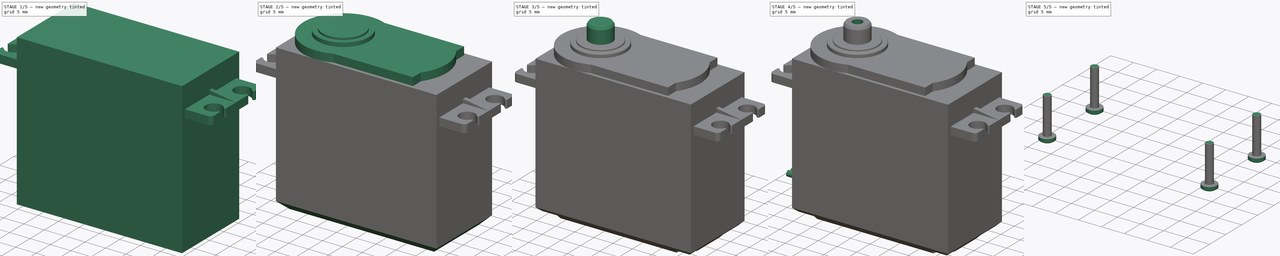
[diagram: build sequence overview — one tinted view per stage of 5, left to right]
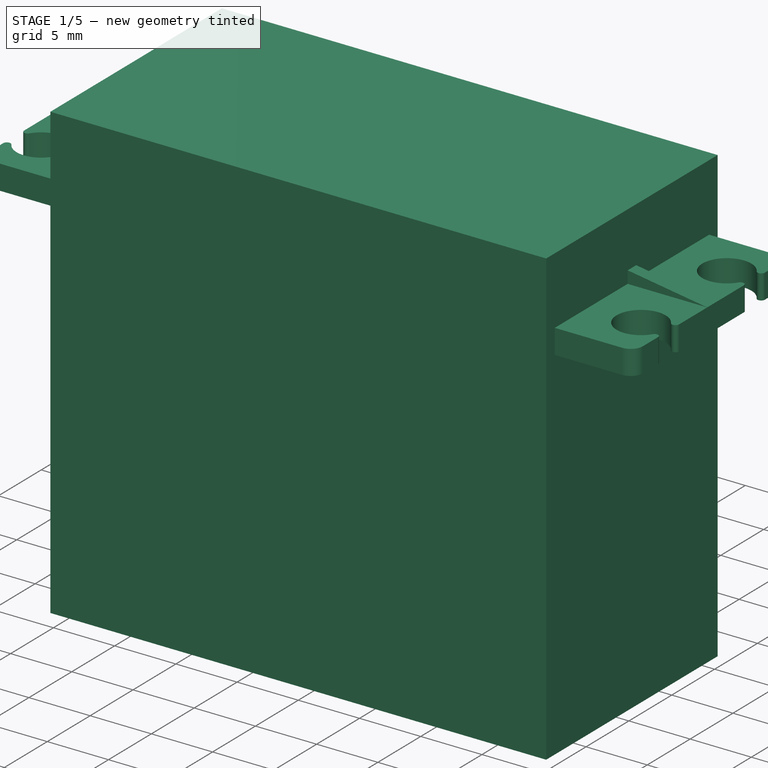
[diagram: stage 1 of 5 — iso view after this stage's code; geometry added in this stage tinted green]
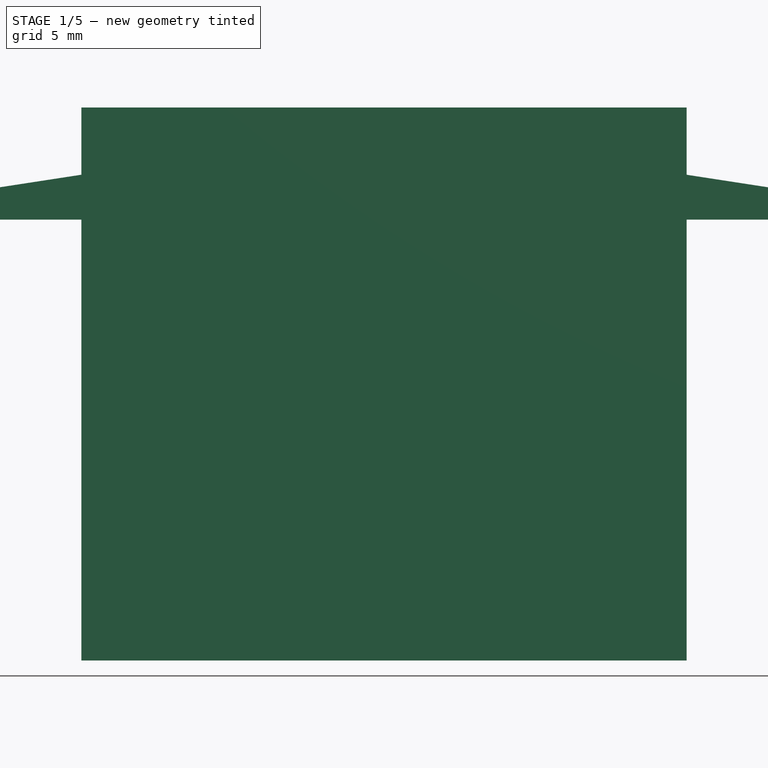
[diagram: stage 1 of 5 — front view after this stage's code; geometry added in this stage tinted green]
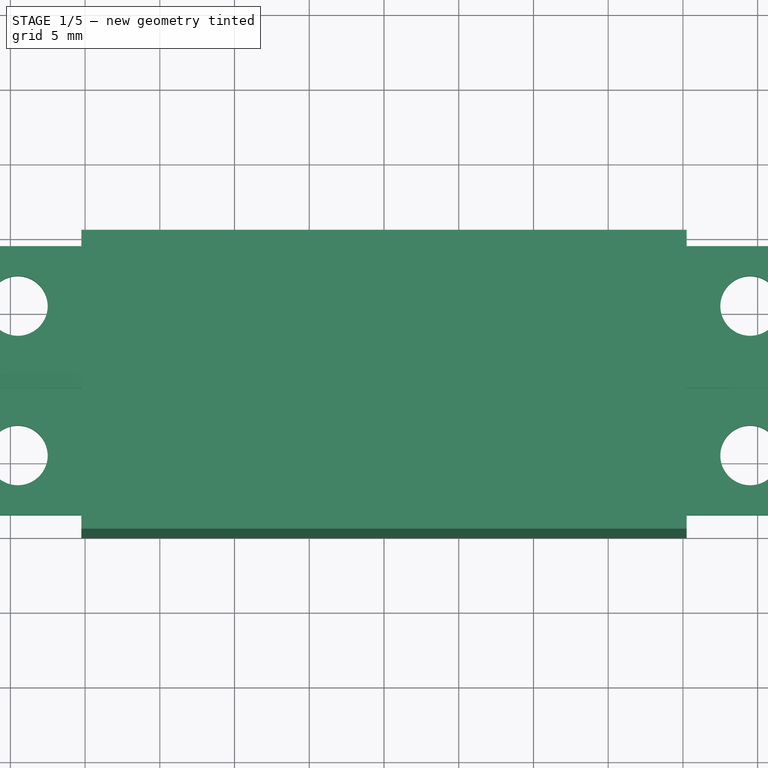
[diagram: stage 1 of 5 — top view after this stage's code; geometry added in this stage tinted green]
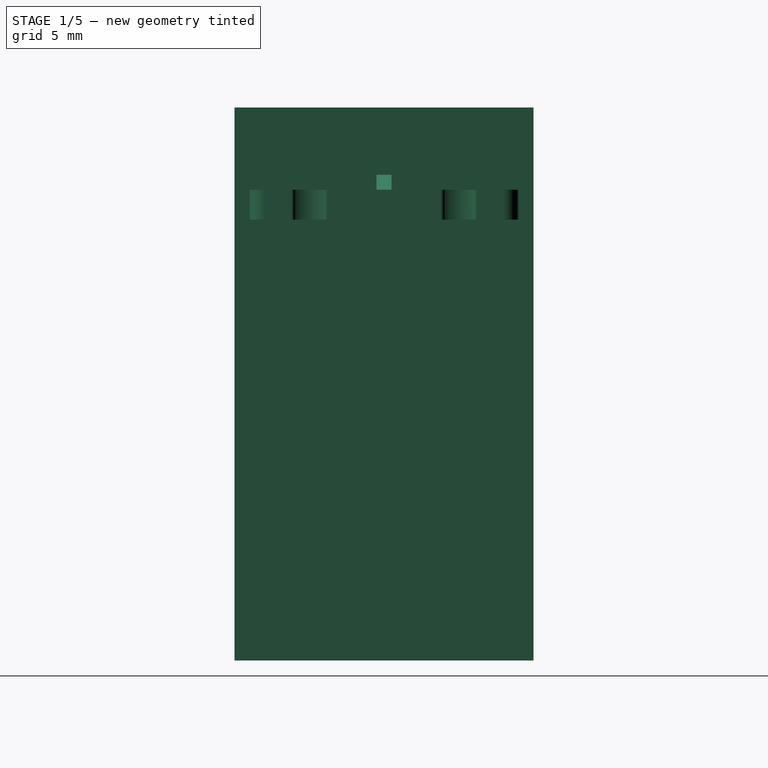
[diagram: stage 1 of 5 — right view after this stage's code; geometry added in this stage tinted green]
FCSTD DOCUMENT  (FreeCAD 0.19R24276 (Git))
Label: servo
License: All rights reserved
LicenseURL: http://en.wikipedia.org/wiki/All_rights_reserved
objects: Sketcher::SketchObject×13, PartDesign::Pad×10, Part::FeaturePython×4, PartDesign::Pocket×3, PartDesign::Chamfer×2, PartDesign::Plane×1, PartDesign::Mirrored×1, PartDesign::Fillet×1, PartDesign::Body×1, App::DocumentObjectGroup×1
note: 52 computed .brp shape members not serialized (recipe doc carries the construction recipe); baked Part::Feature solids carry a one-line shape summary decoded from their .brp

FEATURE [Sketcher::SketchObject] Sketch
  FullyConstrained = true
  MapMode = 5
  Support = -> [XY_Plane]
  sketch-geometry (4):
    g0: LineSegment StartX=-20.25 StartY=10 StartZ=0 EndX=20.25 EndY=10 EndZ=0
    g1: LineSegment StartX=20.25 StartY=10 StartZ=0 EndX=20.25 EndY=-10 EndZ=0
    g2: LineSegment StartX=20.25 StartY=-10 StartZ=0 EndX=-20.25 EndY=-10 EndZ=0
    g3: LineSegment StartX=-20.25 StartY=-10 StartZ=0 EndX=-20.25 EndY=10 EndZ=0
  constraints (11):
    c: Coincident(g0,g1)
    c: Coincident(g1,g2)
    c: Coincident(g2,g3)
    c: Coincident(g3,g0)
    c: Horizontal(g0)
    c: Horizontal(g2)
    c: Vertical(g1)
    c: Vertical(g3)
    c: Symmetric(g0,g2,g-1)
    c: DistanceX(g2,g2) = 40.5
    c: DistanceY(g1,g1) = 20
FEATURE [PartDesign::Pad] Pad
  Direction = (1,1,1)
  Length = 37
  Length2 = 100
  Profile = -> Sketch
  Type = 0
FEATURE [PartDesign::Plane] DatumPlane
  AttachmentOffset = pos=(0,0,-5.5) rot=(0,0,1;0rad)
  Length = 64.3923
  MapMode = 5
  Placement = pos=(0,0,31.5) rot=(0,0,1;0rad)
  ResizeMode = 0
  Support = -> [Pad]
  Width = 60.3923
FEATURE [Sketcher::SketchObject] Sketch001
  ExternalGeometry = -> [Pad]
  FullyConstrained = true
  MapMode = 5
  Placement = pos=(0,0,31.5) rot=(0,0,1;0rad)
  Support = -> [DatumPlane]
  sketch-geometry (14):
    g0: LineSegment StartX=20.25 StartY=9 StartZ=0 EndX=20.25 EndY=-9 EndZ=0
    g1: LineSegment StartX=20.25 StartY=-9 StartZ=0 EndX=25.75 EndY=-9 EndZ=0
    g2: LineSegment StartX=26.75 StartY=-8 StartZ=0 EndX=26.75 EndY=-6.21963 EndZ=0
    g3: LineSegment StartX=25.75 StartY=9 StartZ=0 EndX=20.25 EndY=9 EndZ=0
    g4: ArcOfCircle CenterX=25.75 CenterY=8 CenterZ=0 NormalX=0 NormalY=0 NormalZ=1 AngleXU=0 Radius=1 StartAngle=1.21603e-05 EndAngle=1.5708
    g5: ArcOfCircle CenterX=25.75 CenterY=-8 CenterZ=0 NormalX=0 NormalY=0 NormalZ=1 AngleXU=0 Radius=1 StartAngle=4.71239 EndAngle=6.28319
    g6: ArcOfCircle CenterX=24.5 CenterY=5 CenterZ=0 NormalX=0 NormalY=0 NormalZ=1 AngleXU=0 Radius=2 StartAngle=0.558924 EndAngle=5.72426
    g7: ArcOfCircle CenterX=24.5 CenterY=-5 CenterZ=0 NormalX=0 NormalY=0 NormalZ=1 AngleXU=0 Radius=2 StartAngle=0.558924 EndAngle=5.72426
    g8: ArcOfCircle CenterX=26.45 CenterY=6.21963 CenterZ=0 NormalX=0 NormalY=0 NormalZ=1 AngleXU=0 Radius=0.3 StartAngle=3.70052 EndAngle=6.28319
    g9: ArcOfCircle CenterX=26.45 CenterY=3.78037 CenterZ=0 NormalX=0 NormalY=0 NormalZ=1 AngleXU=0 Radius=0.3 StartAngle=6.28318 EndAngle=8.86585
    g10: ArcOfCircle CenterX=26.45 CenterY=-3.78037 CenterZ=0 NormalX=0 NormalY=0 NormalZ=1 AngleXU=0 Radius=0.3 StartAngle=3.70052 EndAngle=6.28318
    g11: ArcOfCircle CenterX=26.45 CenterY=-6.21963 CenterZ=0 NormalX=0 NormalY=0 NormalZ=1 AngleXU=0 Radius=0.3 StartAngle=1.54083e-05 EndAngle=2.58267
    g12: LineSegment StartX=26.75 StartY=6.21963 StartZ=0 EndX=26.75 EndY=8.00001 EndZ=0
    g13: LineSegment StartX=26.75 StartY=-3.78037 StartZ=0 EndX=26.75 EndY=3.78037 EndZ=0
  constraints (38):
    c: Coincident(g0,g1)
    c: Horizontal(g1)
    c: Vertical(g2)
    c: Coincident(g3,g0)
    c: Horizontal(g3)
    c: Coincident(g12,g4) = -1.5708
    c: Tangent(g3,g4) = -1.5708
    c: Tangent(g1,g5) = -1.5708
    c: Tangent(g2,g5) = -1.5708
    c: Equal(g4,g5)
    c: Radius(g4) = 1
    c: Symmetric(g0,g0,g-1)
    c: Vertical(g0,g-3)
    c: DistanceX(g0,g2) = 6.5
    c: DistanceY(g0,g0) = 18
    c: Symmetric(g6,g7,g-1)
    c: DistanceX(g-1,g6) = 24.5
    c: Diameter(g7) = 4
    c: Equal(g7,g6)
    c: DistanceY(g7,g6) = 10
    c: Equal(g11,g10)
    c: Equal(g10,g9)
    c: Equal(g9,g8)
    c: Vertical(g11,g10)
    c: Vertical(g10,g9)
    c: Vertical(g9,g8)
    c: Radius(g8) = 0.3
    c: Tangent(g6,g8) = 1.5708
    c: Tangent(g6,g9) = 1.5708
    c: Coincident(g13,g9)
    c: Tangent(g12,g8) = -1.5708
    c: Tangent(g2,g12)
    c: Tangent(g7,g10) = 1.5708
    c: Tangent(g7,g11) = 1.5708
    c: Coincident(g2,g11)
    c: Coincident(g13,g10)
    c: Tangent(g2,g13)
    c: Vertical(g4,g5)
FEATURE [PartDesign::Pad] Pad001
  BaseFeature = -> Pad
  Direction = (1,1,1)
  Length = 2
  Length2 = 100
  Profile = -> Sketch001
  Reversed = true
  Type = 0
FEATURE [Sketcher::SketchObject] Sketch002
  ExternalGeometry = -> [Pad001]
  FullyConstrained = true
  Placement = pos=(0,0,0) rot=(1,0,0;1.5708rad)
  sketch-geometry (3):
    g0: LineSegment StartX=20.25 StartY=32.5 StartZ=0 EndX=20.25 EndY=31.5 EndZ=0
    g1: LineSegment StartX=20.25 StartY=31.5 StartZ=0 EndX=26.75 EndY=31.5 EndZ=0
    g2: LineSegment StartX=26.75 StartY=31.5 StartZ=0 EndX=20.25 EndY=32.5 EndZ=0
  constraints (7):
    c: Coincident(g0,g1)
    c: Coincident(g1,g2)
    c: Coincident(g2,g0)
    c: Coincident(g1,g-3)
    c: Coincident(g0,g-4)
    c: Vertical(g0)
    c: DistanceY(g0,g0) = 1
FEATURE [PartDesign::Pad] Pad002
  BaseFeature = -> Pad001
  Direction = (1,1,1)
  Length = 1
  Length2 = 100
  Midplane = true
  Profile = -> Sketch002
  Type = 0
FEATURE [PartDesign::Mirrored] Mirrored
  BaseFeature = -> Pad002
  MirrorPlane = -> Sketch001 [V_Axis]
  Originals = -> [Pad001,Pad002]
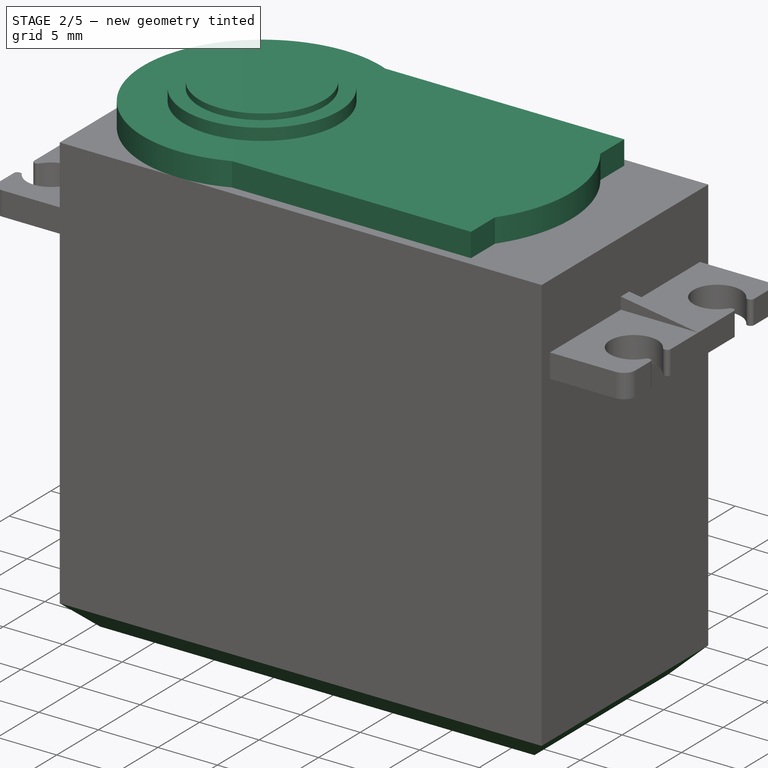
[diagram: stage 2 of 5 — iso view after this stage's code; geometry added in this stage tinted green]
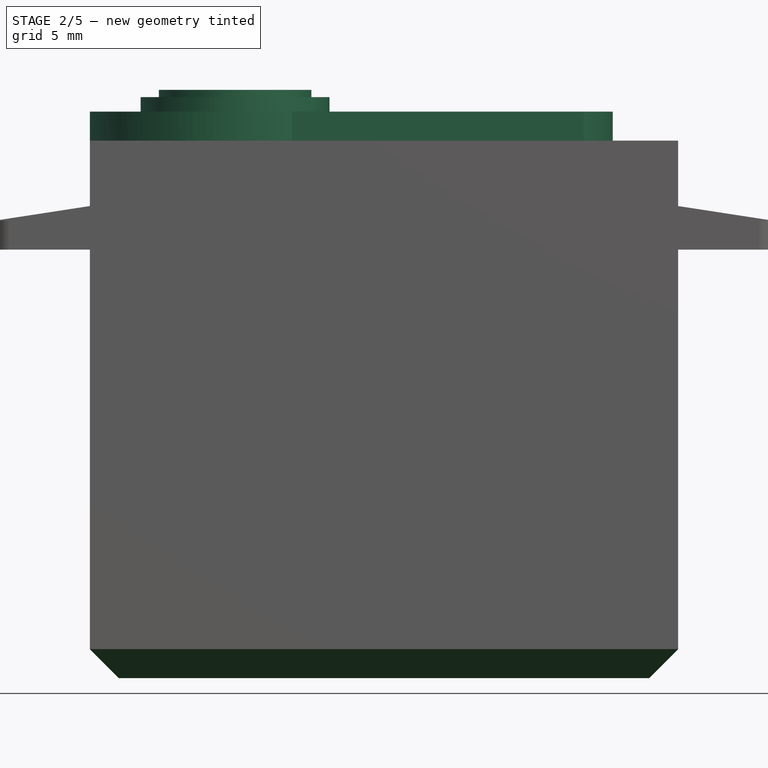
[diagram: stage 2 of 5 — front view after this stage's code; geometry added in this stage tinted green]
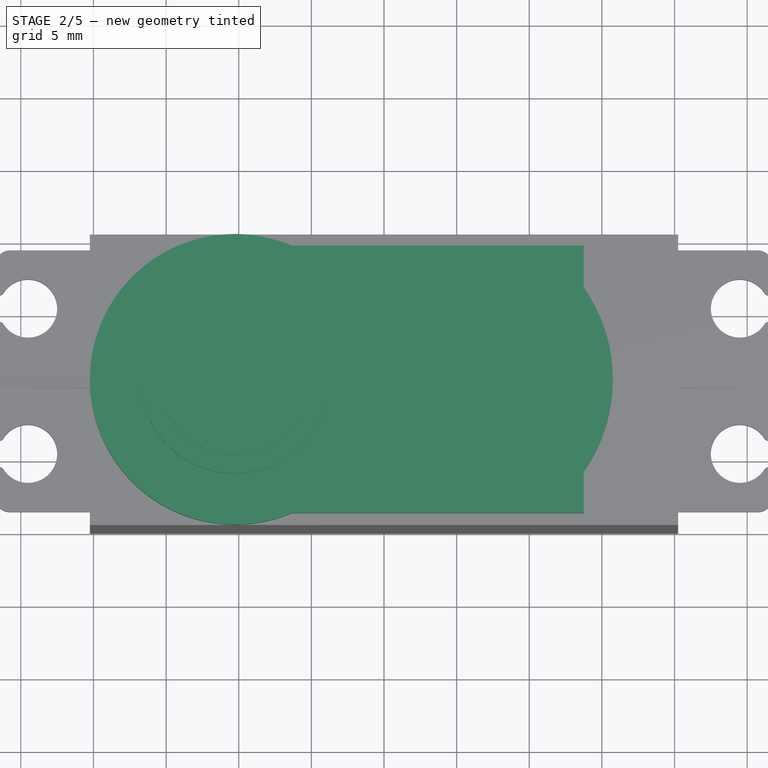
[diagram: stage 2 of 5 — top view after this stage's code; geometry added in this stage tinted green]
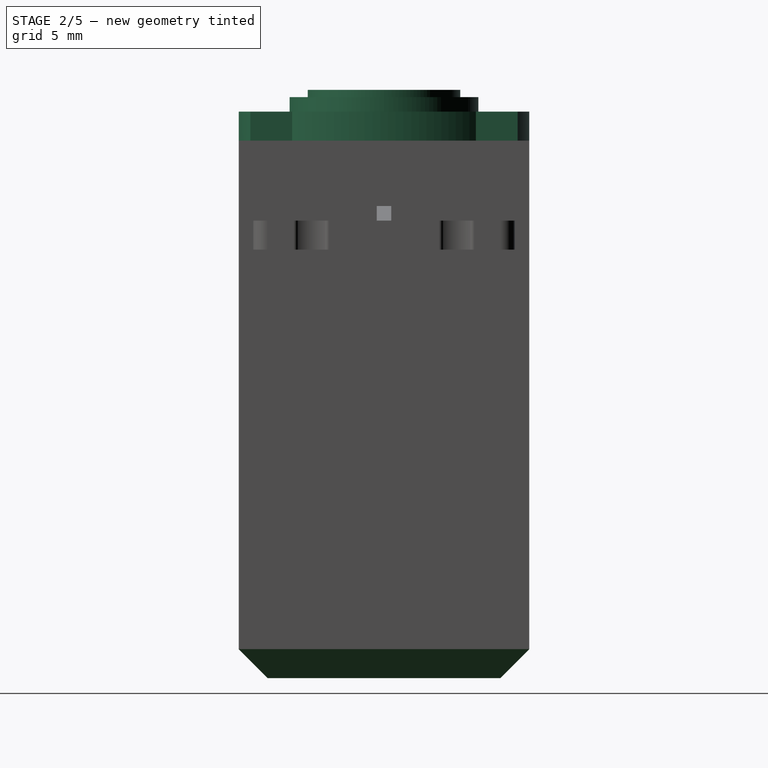
[diagram: stage 2 of 5 — right view after this stage's code; geometry added in this stage tinted green]
FEATURE [PartDesign::Chamfer] Chamfer
  Angle = 30
  Base = -> Mirrored [Edge27,Edge6,Edge3,Edge16]
  BaseFeature = -> Mirrored
  ChamferType = 0
  FlipDirection = false
  Size = 2
  Size2 = 1
  SupportTransform = false
FEATURE [Sketcher::SketchObject] Sketch003
  ExternalGeometry = -> [Chamfer]
  FullyConstrained = true
  MapMode = 5
  Placement = pos=(0,0,37) rot=(0,0,1;0rad)
  Support = -> [Chamfer]
  sketch-geometry (7):
    g0: ArcOfCircle CenterX=-10.25 CenterY=1.2e-15 CenterZ=0 NormalX=0 NormalY=0 NormalZ=1 AngleXU=0 Radius=10 StartAngle=1.16808 EndAngle=5.1151
    g1: LineSegment StartX=-6.33082 StartY=9.2 StartZ=0 EndX=13.75 EndY=9.2 EndZ=0
    g2: LineSegment StartX=13.75 StartY=9.2 StartZ=0 EndX=13.75 EndY=6.32456 EndZ=0
    g3: LineSegment StartX=13.75 StartY=-9.2 StartZ=0 EndX=-6.33082 EndY=-9.2 EndZ=0
    g4: ArcOfCircle CenterX=4.75 CenterY=0 CenterZ=0 NormalX=0 NormalY=0 NormalZ=1 AngleXU=0 Radius=11 StartAngle=5.67063 EndAngle=6.89574
    g5: GeomPoint X=15.75 Y=0 Z=0
    g6: LineSegment StartX=13.75 StartY=-6.32456 StartZ=0 EndX=13.75 EndY=-9.2 EndZ=0
  constraints (20):
    c: Coincident(g1,g2)
    c: Coincident(g6,g3)
    c: Horizontal(g1)
    c: Horizontal(g3)
    c: Vertical(g2)
    c: PointOnObject(g4,g-1)
    c: Tangent(g0,g-5)
    c: Tangent(g0,g-6)
    c: Symmetric(g1,g3,g-1)
    c: DistanceY(g1,g-5) = 0.8
    c: DistanceX(g-6,g1) = 34
    c: PointOnObject(g5,g4)
    c: PointOnObject(g5,g-1)
    c: DistanceX(g4,g5) = 2
    c: Coincident(g0,g1)
    c: Coincident(g0,g3)
    c: Coincident(g2,g4)
    c: Coincident(g6,g4)
    c: Tangent(g2,g6)
    c: Radius(g4) = 11
FEATURE [PartDesign::Pad] Pad003
  BaseFeature = -> Chamfer
  Direction = (1,1,1)
  Length = 2
  Length2 = 100
  Profile = -> Sketch003
  Type = 0
FEATURE [Sketcher::SketchObject] Sketch004
  FullyConstrained = false
  MapMode = 5
  Placement = pos=(0,0,39) rot=(0,0,1;0rad)
  Support = -> [Pad003]
  sketch-geometry (1):
    g0: Circle CenterX=-10.25 CenterY=0 CenterZ=0 NormalX=0 NormalY=0 NormalZ=1 AngleXU=0 Radius=6.5
  constraints (1):
    c: Diameter(g0) = 13
FEATURE [PartDesign::Pad] Pad004
  BaseFeature = -> Pad003
  Direction = (1,1,1)
  Length = 1
  Length2 = 100
  Profile = -> Sketch004
  Type = 0
FEATURE [Sketcher::SketchObject] Sketch005
  FullyConstrained = false
  MapMode = 5
  Placement = pos=(0,0,40) rot=(0,0,1;0rad)
  Support = -> [Pad004]
  sketch-geometry (1):
    g0: Circle CenterX=-10.25 CenterY=0 CenterZ=0 NormalX=0 NormalY=0 NormalZ=1 AngleXU=0 Radius=5.25
  constraints (1):
    c: Diameter(g0) = 10.5
FEATURE [PartDesign::Pad] Pad005
  BaseFeature = -> Pad004
  Direction = (1,1,1)
  Length = 0.5
  Length2 = 100
  Profile = -> Sketch005
  Type = 0
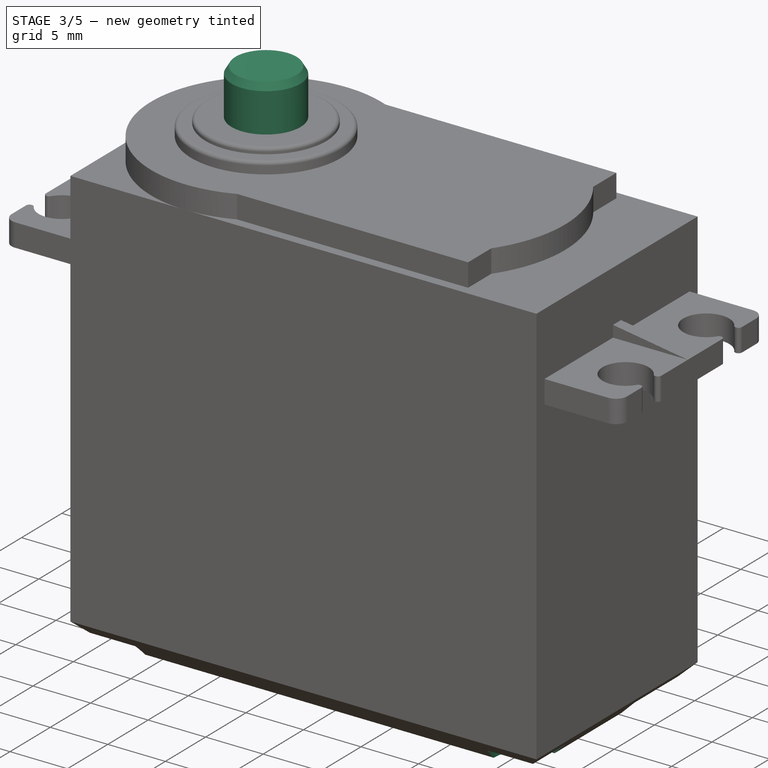
[diagram: stage 3 of 5 — iso view after this stage's code; geometry added in this stage tinted green]
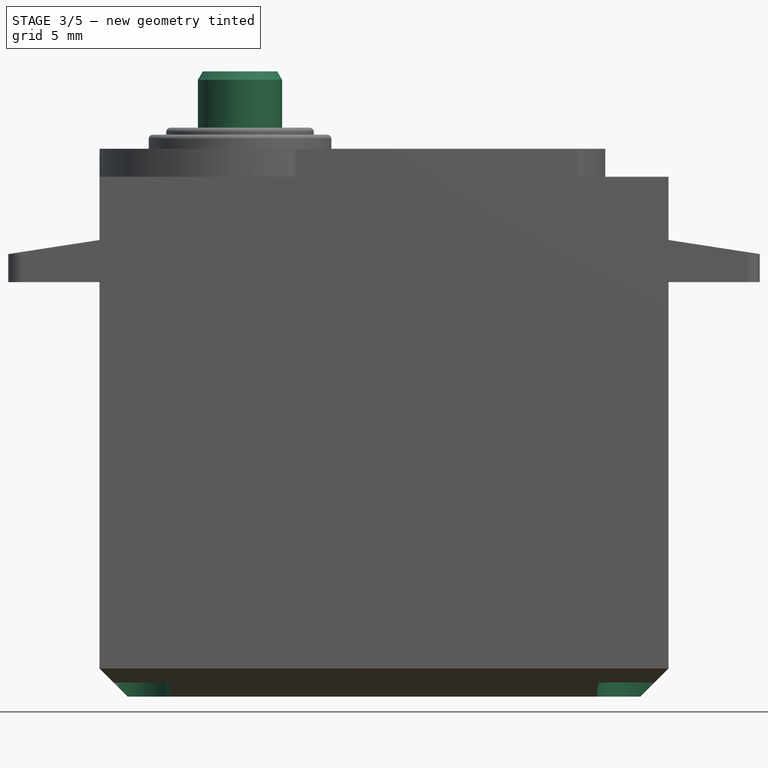
[diagram: stage 3 of 5 — front view after this stage's code; geometry added in this stage tinted green]
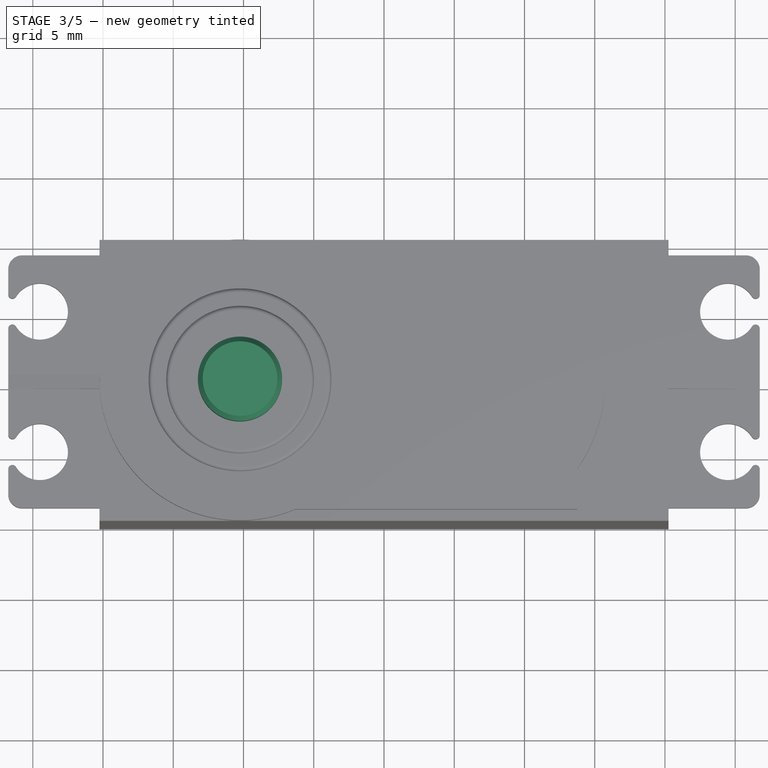
[diagram: stage 3 of 5 — top view after this stage's code; geometry added in this stage tinted green]
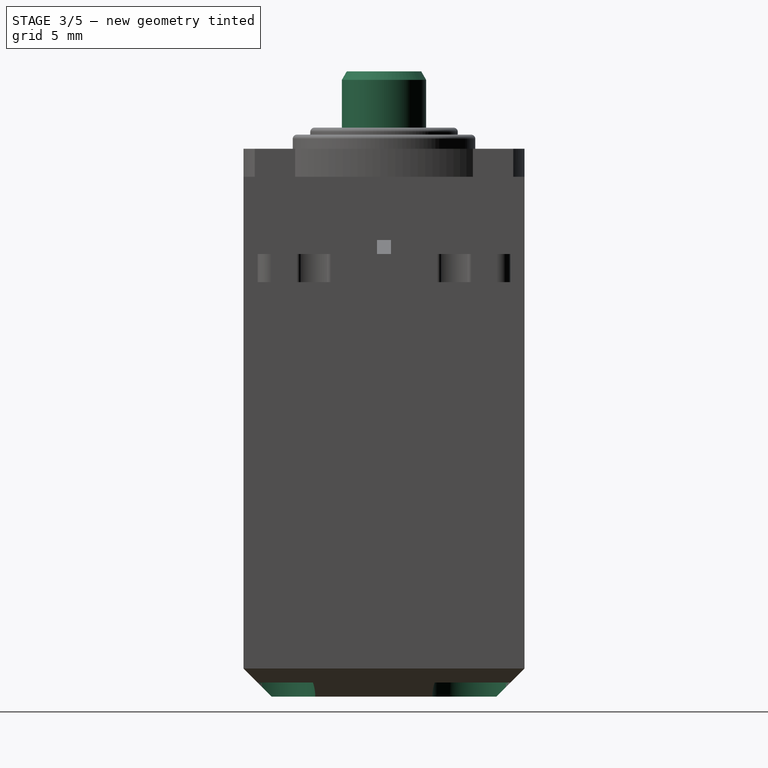
[diagram: stage 3 of 5 — right view after this stage's code; geometry added in this stage tinted green]
FEATURE [Sketcher::SketchObject] Sketch006
  FullyConstrained = false
  MapMode = 5
  Placement = pos=(0,0,40.5) rot=(0,0,1;0rad)
  Support = -> [Pad005]
  sketch-geometry (1):
    g0: Circle CenterX=-10.25 CenterY=0 CenterZ=0 NormalX=0 NormalY=0 NormalZ=1 AngleXU=0 Radius=3
  constraints (1):
    c: Diameter(g0) = 6
FEATURE [PartDesign::Pad] Pad006
  BaseFeature = -> Pad005
  Direction = (1,1,1)
  Length = 4
  Length2 = 100
  Profile = -> Sketch006
  Type = 0
FEATURE [PartDesign::Chamfer] Chamfer001
  Angle = 30
  Base = -> Pad006 [Edge157]
  BaseFeature = -> Pad006
  ChamferType = 2
  FlipDirection = false
  Size = 0.6
  Size2 = 1
  SupportTransform = false
FEATURE [Sketcher::SketchObject] Sketch007
  ExternalGeometry = -> [Chamfer001]
  FullyConstrained = false
  MapMode = 5
  Placement = pos=(0,0,0) rot=(1,0,0;3.14159rad)
  sketch-geometry (4):
    g0: Circle CenterX=18.25 CenterY=8 CenterZ=0 NormalX=0 NormalY=0 NormalZ=1 AngleXU=0 Radius=3.10824
    g1: Circle CenterX=18.25 CenterY=-6.54874 CenterZ=0 NormalX=0 NormalY=0 NormalZ=1 AngleXU=0 Radius=3.10824
    g2: Circle CenterX=-18.25 CenterY=-8 CenterZ=0 NormalX=0 NormalY=0 NormalZ=1 AngleXU=0 Radius=3.10824
    g3: Circle CenterX=-18.25 CenterY=8 CenterZ=0 NormalX=0 NormalY=0 NormalZ=1 AngleXU=0 Radius=3.10824
  constraints (7):
    c: Symmetric(g3,g0,g-2)
    c: Symmetric(g2,g3,g-1)
    c: Vertical(g1,g0)
    c: Equal(g3,g2)
    c: Equal(g3,g1)
    c: Equal(g3,g0)
    c: Coincident(g3,g-5)
FEATURE [PartDesign::Pocket] Pocket
  BaseFeature = -> Chamfer001
  Length = 1
  Length2 = 100
  Profile = -> Sketch007
  Type = 0
FEATURE [Sketcher::SketchObject] Sketch008
  ExternalGeometry = -> [Pocket]
  FullyConstrained = false
  MapMode = 5
  Placement = pos=(0,0,1) rot=(1,0,0;3.14159rad)
  Support = -> [Pocket]
  sketch-geometry (4):
    g0: Circle CenterX=-17.6357 CenterY=7.34743 CenterZ=0 NormalX=0 NormalY=0 NormalZ=1 AngleXU=0 Radius=0.75
    g1: Circle CenterX=-17.6357 CenterY=-7.34743 CenterZ=0 NormalX=0 NormalY=0 NormalZ=1 AngleXU=0 Radius=0.75
    g2: Circle CenterX=17.6357 CenterY=-7.34743 CenterZ=0 NormalX=0 NormalY=0 NormalZ=1 AngleXU=0 Radius=0.75
    g3: Circle CenterX=17.6357 CenterY=7.34743 CenterZ=0 NormalX=0 NormalY=0 NormalZ=1 AngleXU=0 Radius=0.75
  constraints (7):
    c: Symmetric(g3,g0,g-2)
    c: Symmetric(g1,g0,g-1)
    c: Symmetric(g3,g2,g-1)
    c: Diameter(g3) = 1.5
    c: Equal(g3,g0)
    c: Equal(g3,g1)
    c: Equal(g3,g2)
FEATURE [PartDesign::Pocket] Pocket001
  BaseFeature = -> Pocket
  Length = 10
  Length2 = 100
  Profile = -> Sketch008
  Type = 0
FEATURE [Sketcher::SketchObject] Sketch009
  ExternalGeometry = -> [Pocket001]
  FullyConstrained = true
  MapMode = 5
  Placement = pos=(0,0,44.5) rot=(0,0,1;0rad)
  Support = -> [Pocket001]
  sketch-geometry (1):
    g0: Circle CenterX=-10.25 CenterY=0 CenterZ=0 NormalX=0 NormalY=0 NormalZ=1 AngleXU=0 Radius=1.25
  constraints (2):
    c: Coincident(g0,g-3)
    c: Diameter(g0) = 2.5
FEATURE [PartDesign::Fillet] Fillet
  Base = -> Pocket001 [Edge9,Edge6]
  BaseFeature = -> Pocket001
  Radius = 0.3
  SupportTransform = false
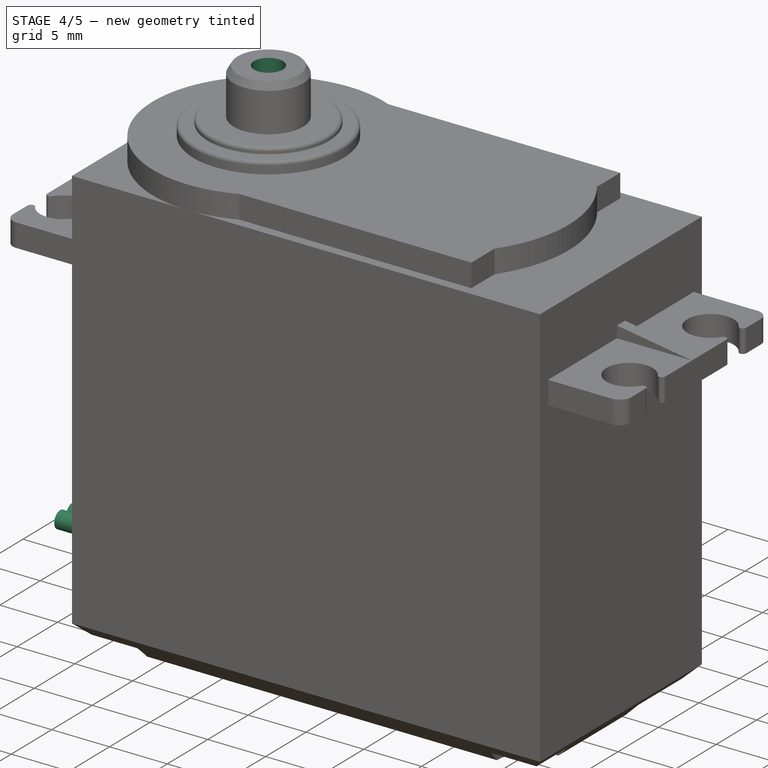
[diagram: stage 4 of 5 — iso view after this stage's code; geometry added in this stage tinted green]
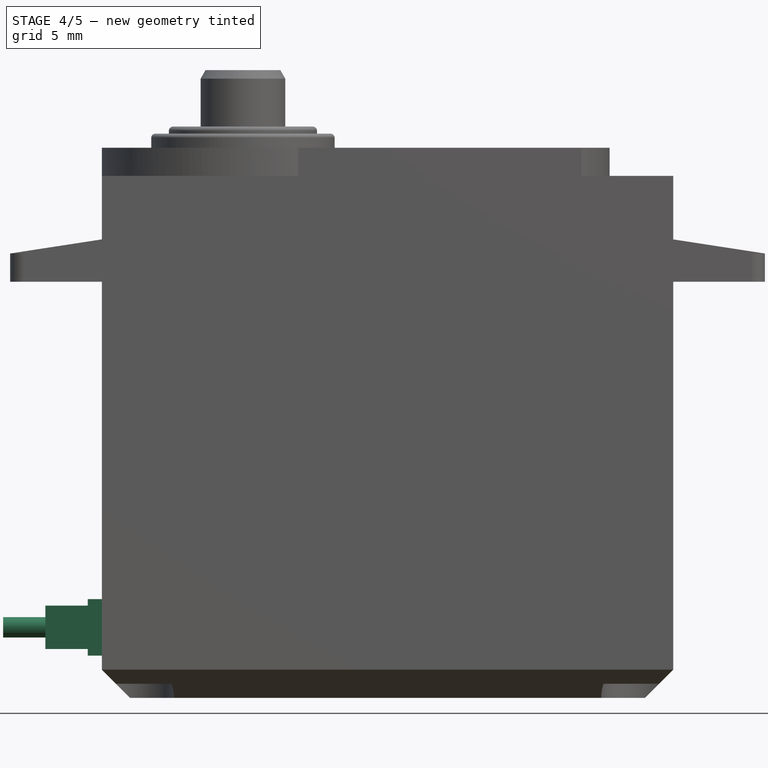
[diagram: stage 4 of 5 — front view after this stage's code; geometry added in this stage tinted green]
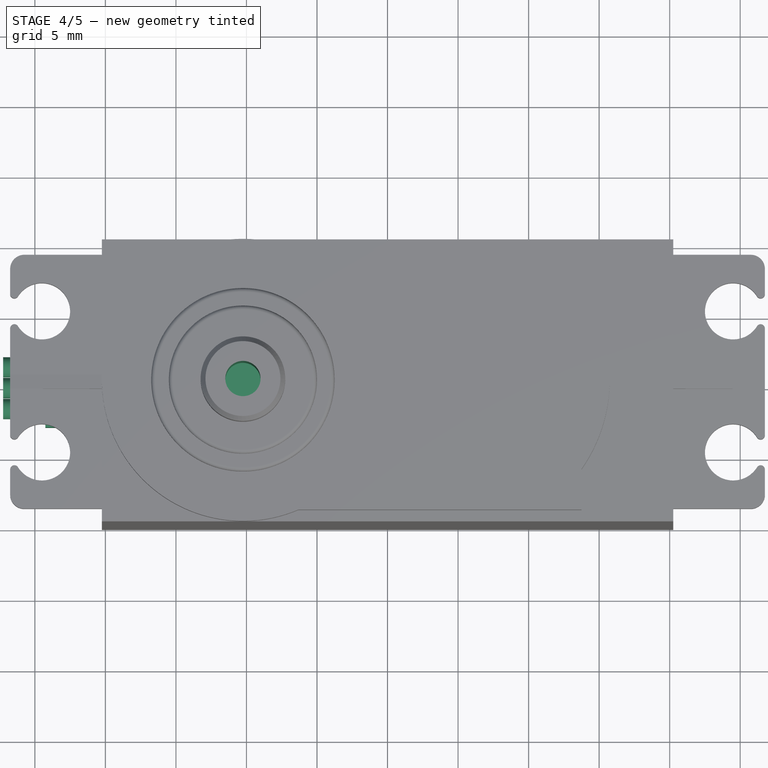
[diagram: stage 4 of 5 — top view after this stage's code; geometry added in this stage tinted green]
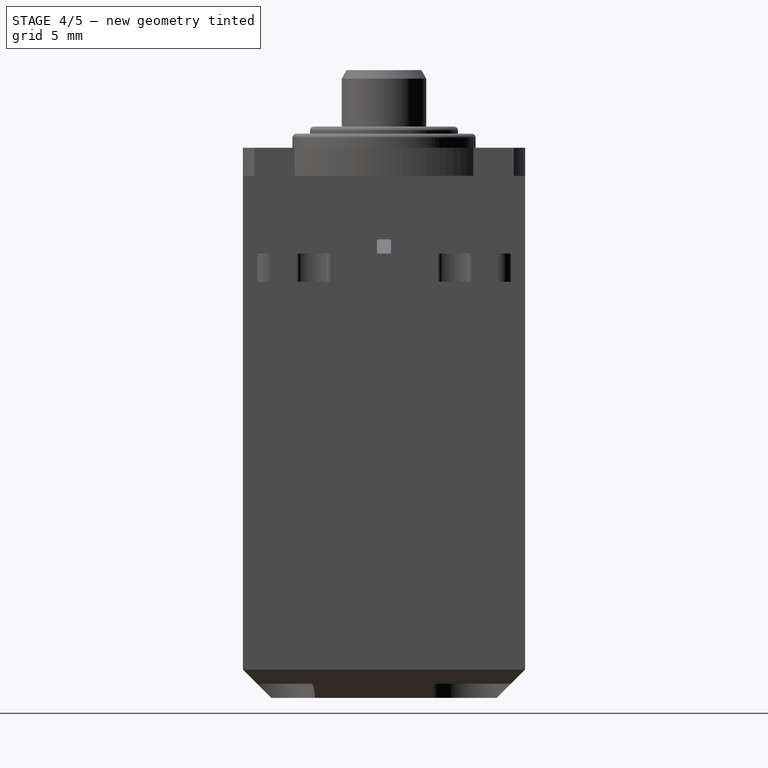
[diagram: stage 4 of 5 — right view after this stage's code; geometry added in this stage tinted green]
FEATURE [PartDesign::Pocket] Pocket002
  BaseFeature = -> Fillet
  Length = 8
  Length2 = 100
  Profile = -> Sketch009
  Type = 0
FEATURE [Sketcher::SketchObject] Sketch010
  FullyConstrained = true
  MapMode = 5
  Placement = pos=(-20.25,0,0) rot=(0.57735,-0.57735,-0.57735;2.0944rad)
  Support = -> [Pocket002]
  sketch-geometry (8):
    g0: LineSegment StartX=-3.25 StartY=7 StartZ=0 EndX=3.25 EndY=7 EndZ=0
    g1: LineSegment StartX=3.25 StartY=7 StartZ=0 EndX=3.25 EndY=3 EndZ=0
    g2: LineSegment StartX=3.25 StartY=3 StartZ=0 EndX=-3.25 EndY=3 EndZ=0
    g3: LineSegment StartX=-3.25 StartY=3 StartZ=0 EndX=-3.25 EndY=7 EndZ=0
    g4: LineSegment StartX=-2.25 StartY=6 StartZ=0 EndX=2.25 EndY=6 EndZ=0
    g5: LineSegment StartX=2.25 StartY=6 StartZ=0 EndX=2.25 EndY=4 EndZ=0
    g6: LineSegment StartX=2.25 StartY=4 StartZ=0 EndX=-2.25 EndY=4 EndZ=0
    g7: LineSegment StartX=-2.25 StartY=4 StartZ=0 EndX=-2.25 EndY=6 EndZ=0
  constraints (22):
    c: Coincident(g0,g1)
    c: Coincident(g1,g2)
    c: Coincident(g2,g3)
    c: Coincident(g3,g0)
    c: Horizontal(g2)
    c: Vertical(g1)
    c: Vertical(g3)
    c: Coincident(g4,g5)
    c: Coincident(g5,g6)
    c: Coincident(g6,g7)
    c: Coincident(g7,g4)
    c: Horizontal(g6)
    c: Vertical(g5)
    c: Vertical(g7)
    c: Symmetric(g4,g4,g-2)
    c: Symmetric(g0,g0,g-2)
    c: DistanceY(g-1,g2) = 3
    c: DistanceY(g3,g3) = 4
    c: DistanceY(g4,g0) = 1
    c: DistanceY(g2,g6) = 1
    c: DistanceX(g4,g0) = 1
    c: DistanceX(g0,g0) = 6.5
FEATURE [PartDesign::Pad] Pad007
  BaseFeature = -> Pocket002
  Direction = (1,1,1)
  Length = 1
  Length2 = 100
  Profile = -> Sketch010
  Type = 0
FEATURE [Sketcher::SketchObject] Sketch011
  ExternalGeometry = -> [Pad007]
  FullyConstrained = false
  MapMode = 5
  Placement = pos=(-21.25,0,0) rot=(0.57735,-0.57735,-0.57735;2.0944rad)
  Support = -> [Pad007]
  sketch-geometry (10):
    g0: LineSegment StartX=-2.78897 StartY=6.53897 StartZ=0 EndX=2.78897 EndY=6.53897 EndZ=0
    g1: LineSegment StartX=2.78897 StartY=6.53897 StartZ=0 EndX=2.78897 EndY=3.46103 EndZ=0
    g2: LineSegment StartX=2.78897 StartY=3.46103 StartZ=0 EndX=-2.78897 EndY=3.46103 EndZ=0
    g3: LineSegment StartX=-2.78897 StartY=3.46103 StartZ=0 EndX=-2.78897 EndY=6.53897 EndZ=0
    g4: LineSegment StartX=-2.25 StartY=4 StartZ=0 EndX=2.25 EndY=4 EndZ=0
    g5: LineSegment StartX=2.25 StartY=4 StartZ=0 EndX=2.25 EndY=6 EndZ=0
    g6: LineSegment StartX=2.25 StartY=6 StartZ=0 EndX=-2.25 EndY=6 EndZ=0
    g7: LineSegment StartX=-2.25 StartY=6 StartZ=0 EndX=-2.25 EndY=4 EndZ=0
    g8: LineSegment StartX=-3.25 StartY=3 StartZ=0 EndX=-2.25 EndY=4 EndZ=0
    g9: LineSegment StartX=2.25 StartY=6 StartZ=0 EndX=3.25 EndY=7 EndZ=0
  constraints (24):
    c: Coincident(g0,g1)
    c: Coincident(g1,g2)
    c: Coincident(g2,g3)
    c: Coincident(g3,g0)
    c: Horizontal(g2)
    c: Vertical(g1)
    c: Vertical(g3)
    c: Coincident(g4,g5)
    c: Coincident(g5,g6)
    c: Coincident(g6,g7)
    c: Coincident(g7,g4)
    c: Horizontal(g4)
    c: Horizontal(g6)
    c: Vertical(g5)
    c: Vertical(g7)
    c: Coincident(g4,g-5)
    c: Coincident(g5,g-4)
    c: Coincident(g8,g-6)
    c: Coincident(g8,g4)
    c: PointOnObject(g2,g8)
    c: Coincident(g9,g5)
    c: Coincident(g9,g-3)
    c: PointOnObject(g0,g9)
    c: Symmetric(g0,g0,g-2)
FEATURE [PartDesign::Pad] Pad008
  BaseFeature = -> Pad007
  Direction = (1,1,1)
  Length = 3
  Length2 = 100
  Profile = -> Sketch011
  Type = 0
FEATURE [Sketcher::SketchObject] Sketch012
  ExternalGeometry = -> [Pad008]
  FullyConstrained = false
  MapMode = 5
  Placement = pos=(-20.25,0,0) rot=(0.57735,-0.57735,-0.57735;2.0944rad)
  Support = -> [Pad008]
  sketch-geometry (5):
    g0: Circle CenterX=-1.47307 CenterY=5 CenterZ=0 NormalX=0 NormalY=0 NormalZ=1 AngleXU=0 Radius=0.722534
    g1: Circle CenterX=0 CenterY=5 CenterZ=0 NormalX=0 NormalY=0 NormalZ=1 AngleXU=0 Radius=0.722534
    g2: Circle CenterX=1.47307 CenterY=5 CenterZ=0 NormalX=0 NormalY=0 NormalZ=1 AngleXU=0 Radius=0.722534
    g3: LineSegment StartX=0 StartY=5 StartZ=0 EndX=0 EndY=6 EndZ=0
    g4: LineSegment StartX=0 StartY=5 StartZ=0 EndX=0 EndY=4 EndZ=0
  constraints (12):
    c: PointOnObject(g1,g-2)
    c: Horizontal(g0,g1)
    c: Symmetric(g0,g2,g-2)
    c: Equal(g0,g1)
    c: Equal(g1,g2)
    c: Coincident(g3,g1)
    c: PointOnObject(g3,g-2)
    c: Coincident(g4,g1)
    c: PointOnObject(g4,g-2)
    c: Horizontal(g4,g-4)
    c: Horizontal(g3,g-3)
    c: Equal(g3,g4)
FEATURE [PartDesign::Pad] Pad009
  BaseFeature = -> Pad008
  Direction = (1,1,1)
  Length = 7
  Length2 = 100
  Profile = -> Sketch012
  Type = 0
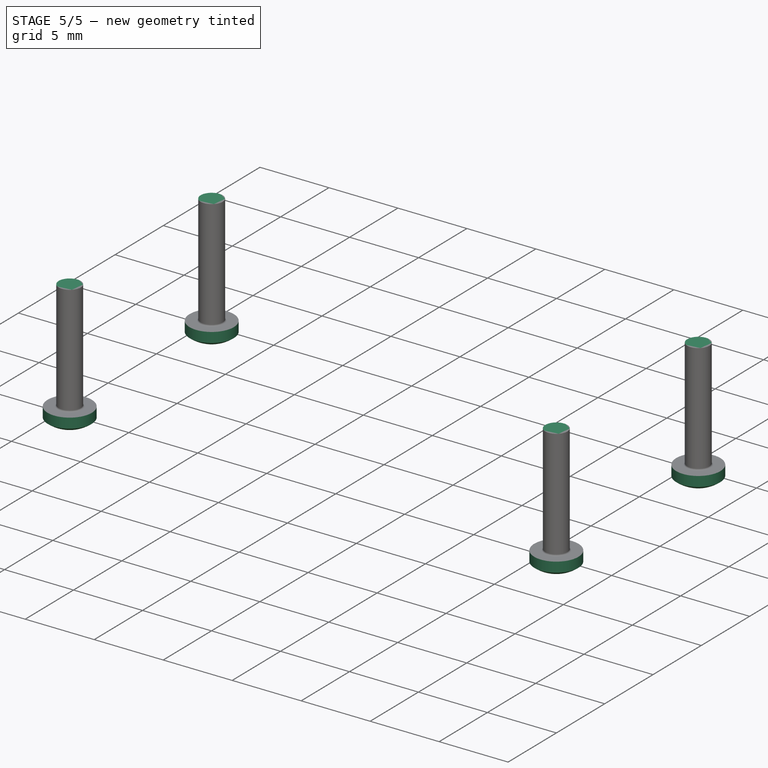
[diagram: stage 5 of 5 — iso view after this stage's code; geometry added in this stage tinted green]
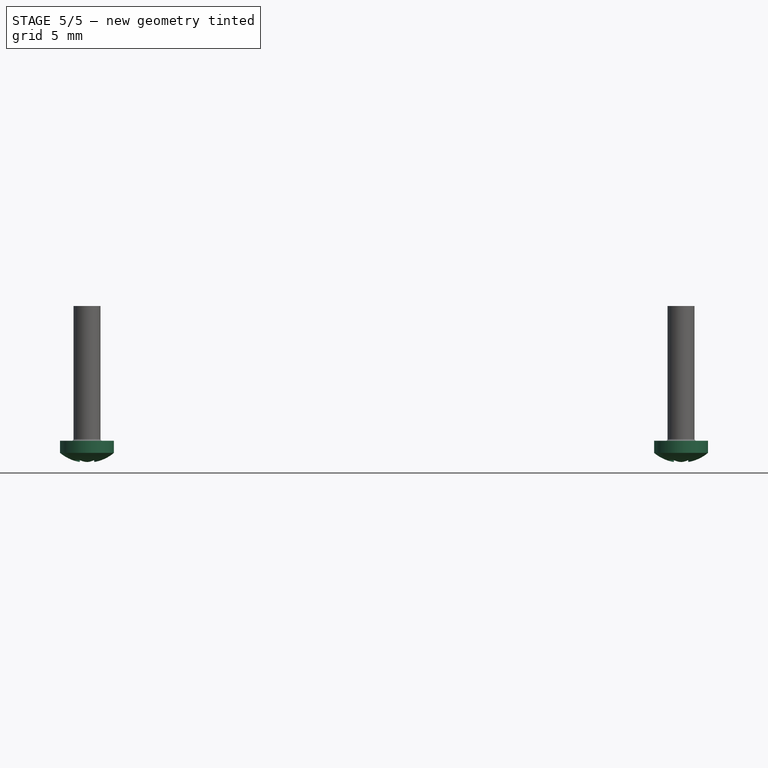
[diagram: stage 5 of 5 — front view after this stage's code; geometry added in this stage tinted green]
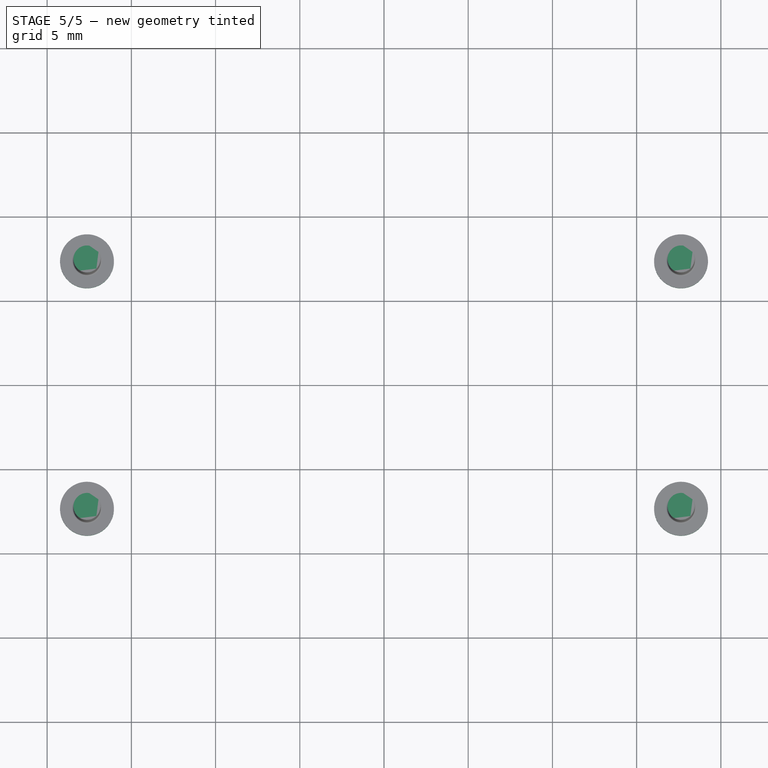
[diagram: stage 5 of 5 — top view after this stage's code; geometry added in this stage tinted green]
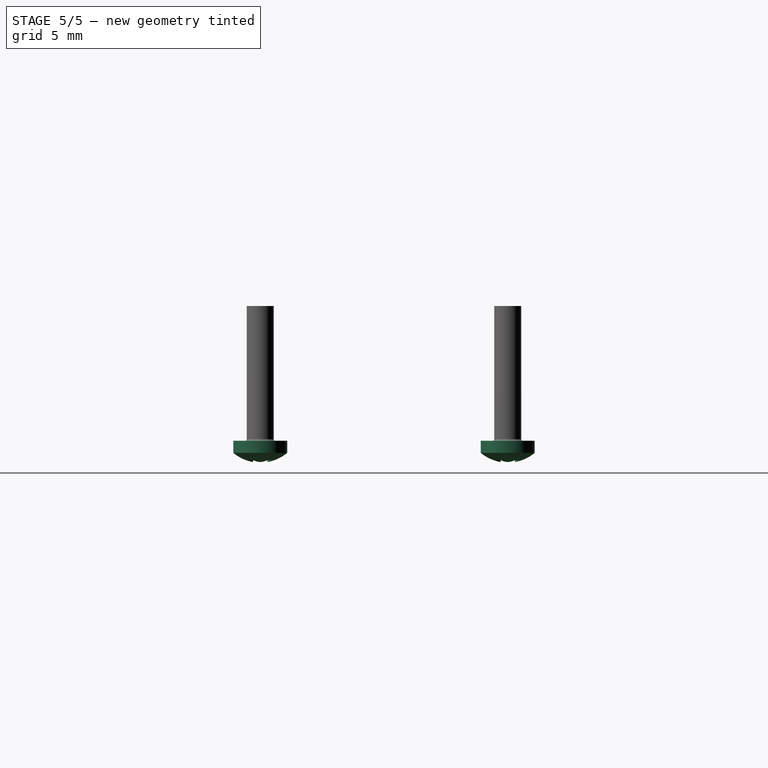
[diagram: stage 5 of 5 — right view after this stage's code; geometry added in this stage tinted green]
FEATURE [PartDesign::Body] Body
  Group = -> [Sketch,Pad,DatumPlane,Sketch001,Pad001,Sketch002,Pad002,Mirrored,Chamfer,Sketch003,Pad003,Sketch004,Pad004,Sketch005,Pad005,Sketch006,Pad006,Sketch007,Chamfer001,Pocket,Sketch008,Pocket001,Sketch009,Fillet,Pocket002,Sketch010,Pad007,Sketch011,Pad008,Sketch012,Pad009]
  Origin = -> Origin
  Tip = -> Pad009
FEATURE [Part::FeaturePython] Screw  label="M1.6x8-Screw"  # Fasteners workbench fastener (typed FeaturePython)
  Placement = pos=(-17.6357,-7.34743,1) rot=(-1,0,0;3.14159rad)
  baseObject = -> Body [Edge177]
  diameter = 1
  invert = false
  length = 4
  lengthCustom = 8
  matchOuter = true
  offset = 0
  thread = false
  type = 34
FEATURE [Part::FeaturePython] Screw001  label="M1.6x8-Screw016"  # Fasteners workbench fastener (typed FeaturePython)
  Placement = pos=(-17.6357,7.34743,1) rot=(-1,0,0;3.14159rad)
  baseObject = -> Body [Edge199]
  diameter = 1
  invert = false
  length = 4
  lengthCustom = 8
  matchOuter = true
  offset = 0
  thread = false
  type = 34
FEATURE [Part::FeaturePython] Screw002  label="M1.6x8-Screw017"  # Fasteners workbench fastener (typed FeaturePython)
  Placement = pos=(17.6357,-7.34743,1) rot=(-1,0,0;3.14159rad)
  baseObject = -> Body [Edge184]
  diameter = 1
  invert = false
  length = 4
  lengthCustom = 8
  matchOuter = true
  offset = 0
  thread = false
  type = 34
FEATURE [Part::FeaturePython] Screw003  label="M1.6x8-Screw018"  # Fasteners workbench fastener (typed FeaturePython)
  Placement = pos=(17.6357,7.34743,1) rot=(-1,0,0;3.14159rad)
  baseObject = -> Body [Edge186]
  diameter = 1
  invert = false
  length = 4
  lengthCustom = 8
  matchOuter = true
  offset = 0
  thread = false
  type = 34
FEATURE [App::DocumentObjectGroup] Group  label="tornillos"
  Group = -> [Screw,Screw001,Screw002,Screw003]
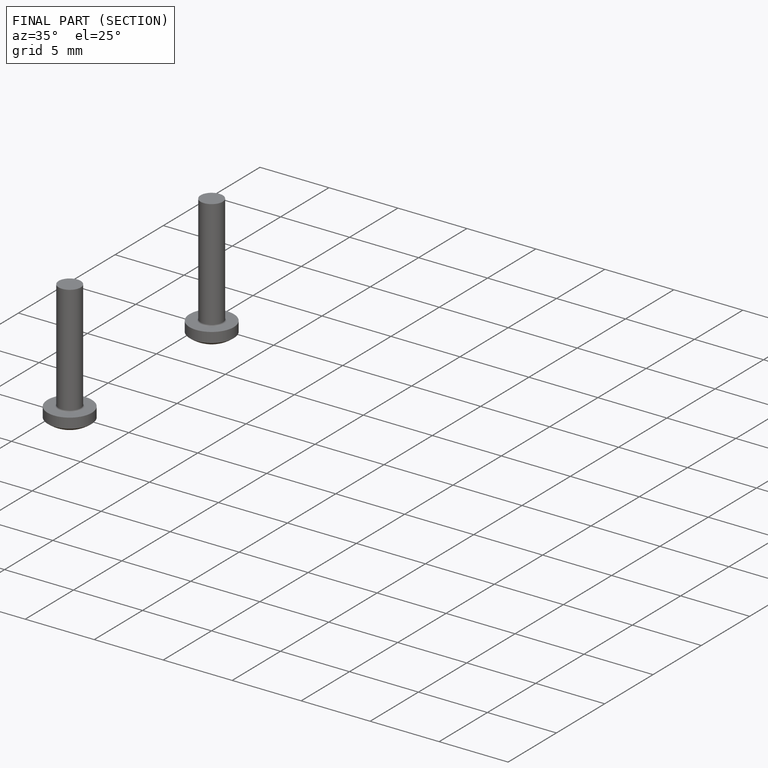
[diagram: finished part — half-section view (interior)]
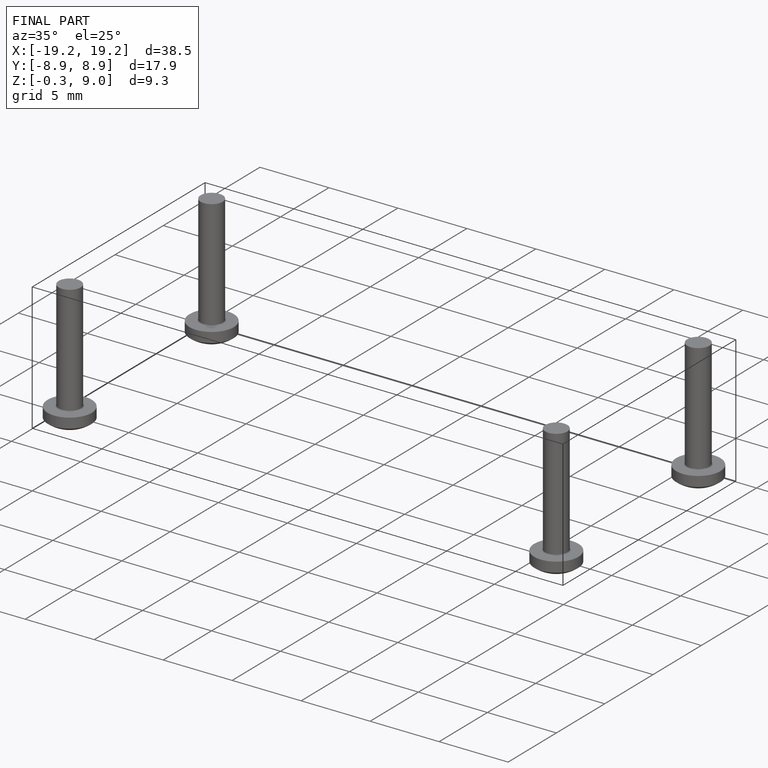
[diagram: finished part — iso view with bounding-box wireframe]
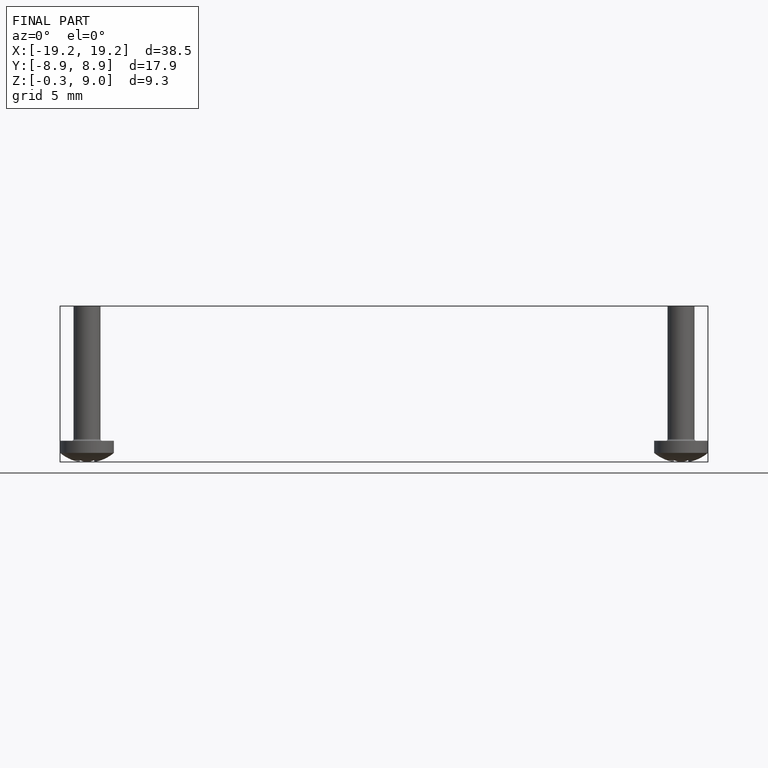
[diagram: finished part — front view with bounding-box wireframe]
